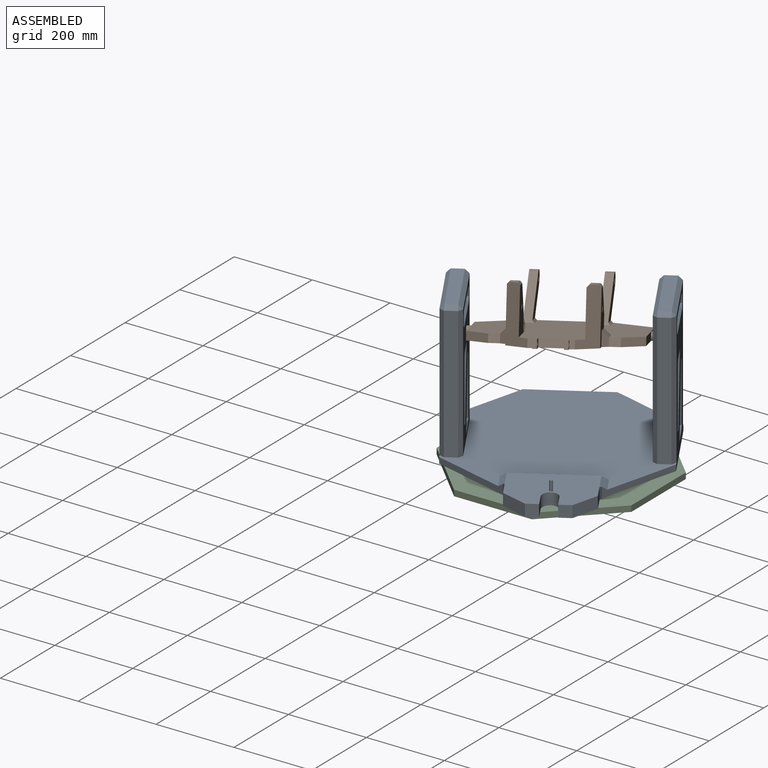
[diagram: assembled view]
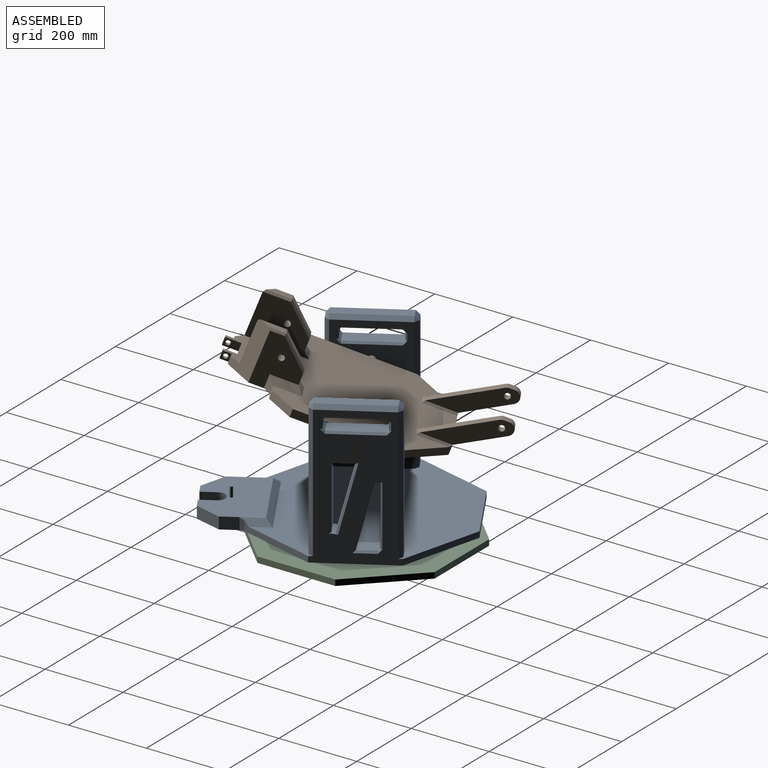
[diagram: assembled view, second angle]
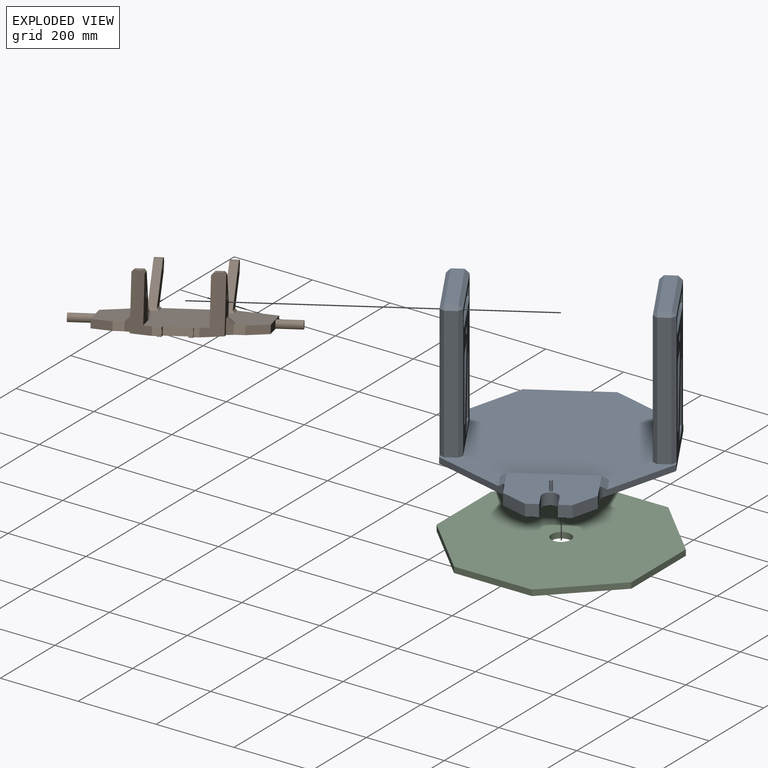
[diagram: exploded view]
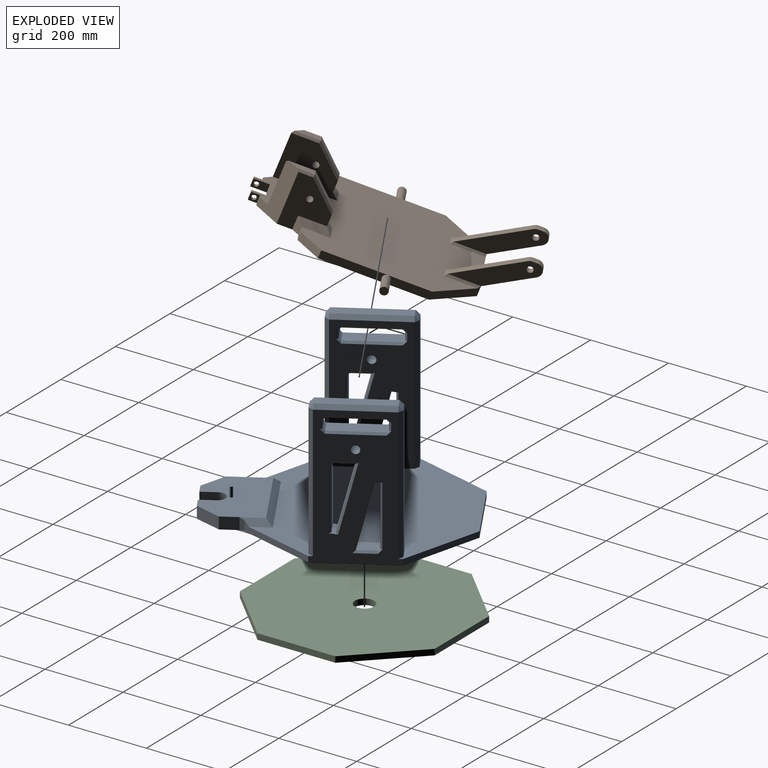
[diagram: exploded view, second angle]
ASSEMBLY  parts=3 mates=2
PART A: 170 faces, bbox 500x600x410 mm
  f0: plane 30x30mm, normal (0,-1,0), area 900mm2, adj f7,f24,f52,f167
  f1: plane 355x200mm, normal (1,0,0), area 44317.3mm2, adj f5,f7,f8,f9,f20,f27,f32,f33
  f2: plane 340x180mm, normal (-1,0,0), area 41317.3mm2, adj f5,f20,f28,f34,f35,f70,f71,f72
  f3: plane 340x180mm, normal (1,0,0), area 41317.3mm2, adj f5,f21,f44,f48,f50,f100,f101,f103
  f4: plane 355x200mm, normal (-1,0,0), area 44317.3mm2, adj f5,f7,f10,f11,f21,f39,f41,f42
  f5: plane 500x485mm, normal (0,0,1), area 170675mm2, adj f1,f2,f3,f4,f6,f8,f9,f10
  f6: plane 200x15mm, normal (0,1,0), area 3000mm2, adj f5,f7,f9,f10
  f7: plane 600x500mm, normal (0,0,-1), area 218335.5mm2, adj f0,f1,f4,f6,f8,f9,f10,f11
  f8: plane 145.61x145.61mm, normal (0.71,-0.71,0), area 3168.3mm2, adj f1,f5,f7,f56,f57
  f9: plane 150x150mm, normal (0.71,0.71,0), area 3182mm2, adj f1,f5,f6,f7
  f10: plane 150x150mm, normal (-0.71,0.71,0), area 3182mm2, adj f4,f5,f6,f7
  f11: plane 145.61x145.61mm, normal (-0.71,-0.71,0), area 3168.3mm2, adj f4,f5,f7,f53,f54
  f12: cylinder r=25mm len=50mm, axis (0,0,1), area 7068.6mm2, adj f7,f13
  f13: plane 50x50mm, normal (0,0,-1), area 1963.5mm2, adj f12
  f14: plane 340x30mm, normal (0,1,0), area 10200mm2, adj f5,f39,f43,f44
  f15: plane 340x30mm, normal (0,-1,0), area 10200mm2, adj f5,f41,f47,f50
  f16: plane 180x30mm, normal (0,0,1), area 5400mm2, adj f42,f43,f47,f48
  f17: plane 340x30mm, normal (0,1,0), area 10200mm2, adj f5,f27,f28,f29
  f18: plane 340x30mm, normal (0,-1,0), area 10200mm2, adj f5,f33,f34,f38
  f19: plane 180x30mm, normal (0,0,1), area 5400mm2, adj f29,f32,f35,f38
  f20: cylinder r=10mm len=50mm, axis (-1,0,0), area 3141.6mm2, adj f1,f2
  f21: cylinder r=10mm len=50mm, axis (-1,0,0), area 3141.6mm2, adj f3,f4
  f22: plane 43.79x30mm, normal (-1,0,0), area 1313.6mm2, adj f7,f24,f52,f53
  f23: plane 43.79x30mm, normal (1,0,0), area 1313.6mm2, adj f7,f24,f51,f57
  f24: plane 200x150mm, normal (0,0,1), area 25218.9mm2, adj f0,f22,f23,f25,f26,f51,f52,f54
  f25: plane 30x30mm, normal (0,-1,0), area 900mm2, adj f7,f24,f51,f166
  f26: cylinder r=20mm len=40mm, axis (0,0,1), area 1891.2mm2, adj f7,f24,f166,f167
  f27: plane 340x10mm, normal (0.71,0.71,0), area 4808.3mm2, adj f1,f5,f17,f30
  f28: plane 340x10mm, normal (-0.71,0.71,0), area 4808.3mm2, adj f2,f5,f17,f31
  f29: plane 30x10mm, normal (0,0.71,0.71), area 424.3mm2, adj f17,f19,f30,f31
  f30: plane 10x10mm, normal (0.58,0.58,0.58), area 86.6mm2, adj f27,f29,f32
  f31: plane 10x10mm, normal (-0.58,0.58,0.58), area 86.6mm2, adj f28,f29,f35
  f32: plane 180x10mm, normal (0.71,0,0.71), area 2545.6mm2, adj f1,f19,f30,f36
  f33: plane 340x10mm, normal (0.71,-0.71,0), area 4808.3mm2, adj f1,f5,f18,f36
  f34: plane 340x10mm, normal (-0.71,-0.71,0), area 4808.3mm2, adj f2,f5,f18,f37
  f35: plane 180x10mm, normal (-0.71,0,0.71), area 2545.6mm2, adj f2,f19,f31,f37
  f36: plane 10x10mm, normal (0.58,-0.58,0.58), area 86.6mm2, adj f32,f33,f38
  f37: plane 10x10mm, normal (-0.58,-0.58,0.58), area 86.6mm2, adj f34,f35,f38
  f38: plane 30x10mm, normal (0,-0.71,0.71), area 424.3mm2, adj f18,f19,f36,f37
  f39: plane 340x10mm, normal (-0.71,0.71,0), area 4808.3mm2, adj f4,f5,f14,f40
  f40: plane 10x10mm, normal (-0.58,0.58,0.58), area 86.6mm2, adj f39,f42,f43
  f41: plane 340x10mm, normal (-0.71,-0.71,0), area 4808.3mm2, adj f4,f5,f15,f45
  f42: plane 180x10mm, normal (-0.71,0,0.71), area 2545.6mm2, adj f4,f16,f40,f45
  f43: plane 30x10mm, normal (0,0.71,0.71), area 424.3mm2, adj f14,f16,f40,f46
  f44: plane 340x10mm, normal (0.71,0.71,0), area 4808.3mm2, adj f3,f5,f14,f46
  f45: plane 10x10mm, normal (-0.58,-0.58,0.58), area 86.6mm2, adj f41,f42,f47
  f46: plane 10x10mm, normal (0.58,0.58,0.58), area 86.6mm2, adj f43,f44,f48
  f47: plane 30x10mm, normal (0,-0.71,0.71), area 424.3mm2, adj f15,f16,f45,f49
  f48: plane 180x10mm, normal (0.71,0,0.71), area 2545.6mm2, adj f3,f16,f46,f49
  f49: plane 10x10mm, normal (0.58,-0.58,0.58), area 86.6mm2, adj f47,f48,f50
  f50: plane 340x10mm, normal (0.71,-0.71,0), area 4808.3mm2, adj f3,f5,f15,f49
  f51: plane 50x50mm, normal (0.71,-0.71,0), area 2121.3mm2, adj f7,f23,f24,f25
  f52: plane 50x50mm, normal (-0.71,-0.71,0), area 2121.3mm2, adj f0,f7,f22,f24
  f53: plane 30x10.61mm, normal (-0.92,-0.38,0), area 319.2mm2, adj f7,f11,f22,f54
  f54: plane 71.21x15mm, normal (-0.71,0,0.71), area 1080mm2, adj f5,f11,f24,f53,f55
  f55: plane 230x15mm, normal (0,0.71,0.71), area 4560.8mm2, adj f5,f24,f54,f56
  f56: plane 71.21x15mm, normal (0.71,0,0.71), area 1080mm2, adj f5,f8,f24,f55,f57
  f57: plane 30x10.61mm, normal (0.92,-0.38,0), area 319.2mm2, adj f7,f8,f23,f56
  f58: plane 155.64x40mm, normal (0,-1,0), area 6225.4mm2, adj f73,f74,f77,f78
  f59: plane 161.89x41.8mm, normal (0,0.97,-0.25), area 6687.8mm2, adj f60,f70,f74,f79
  f60: plane 46.64x40mm, normal (0,0,1), area 1865.6mm2, adj f59,f72,f77,f81
  f61: plane 155.64x40mm, normal (0,1,0), area 6225.4mm2, adj f85,f86,f89,f90
  f62: plane 161.89x41.8mm, normal (0,-0.97,0.25), area 6687.8mm2, adj f63,f82,f86,f91
  f63: plane 46.64x40mm, normal (0,0,-1), area 1865.6mm2, adj f62,f84,f89,f93
  f64: plane 46.64x40mm, normal (0,0,1), area 1865.6mm2, adj f65,f94,f98,f103
  f65: plane 161.89x41.8mm, normal (0,0.97,-0.25), area 6687.8mm2, adj f64,f97,f102,f105
  f66: plane 155.64x40mm, normal (0,-1,0), area 6225.4mm2, adj f96,f98,f101,f102
  f67: plane 46.64x40mm, normal (0,0,-1), area 1865.6mm2, adj f68,f106,f110,f115
  f68: plane 161.89x41.8mm, normal (0,-0.97,0.25), area 6687.8mm2, adj f67,f109,f114,f117
  f69: plane 155.64x40mm, normal (0,1,0), area 6225.4mm2, adj f108,f110,f113,f114
  f70: plane 168.14x48.25mm, normal (-0.71,0.68,-0.18), area 1205.1mm2, adj f2,f59,f71,f72
  f71: plane 19.68x5mm, normal (-0.13,-0.13,-0.98), area 75mm2, adj f2,f70,f73,f74
  f72: plane 53.09x5mm, normal (-0.71,0,0.71), area 352.6mm2, adj f2,f60,f70,f75
  f73: plane 155.64x5mm, normal (-0.71,-0.71,0), area 1100.5mm2, adj f2,f58,f71,f75
  f74: plane 40x9.84mm, normal (0,-0.13,-0.99), area 396.8mm2, adj f58,f59,f71,f76
  f75: plane 10x10mm, normal (-0.58,-0.58,0.58), area 65mm2, adj f2,f72,f73,f77
  f76: plane 19.68x5mm, normal (0.13,-0.13,-0.98), area 75mm2, adj f1,f74,f78,f79
  f77: plane 40x5mm, normal (0,-0.71,0.71), area 282.8mm2, adj f58,f60,f75,f80
  f78: plane 155.64x5mm, normal (0.71,-0.71,0), area 1100.5mm2, adj f1,f58,f76,f80
  f79: plane 168.14x48.25mm, normal (0.71,0.68,-0.18), area 1205.1mm2, adj f1,f59,f76,f81
  f80: plane 10x10mm, normal (0.58,-0.58,0.58), area 65mm2, adj f1,f77,f78,f81
  f81: plane 53.09x5mm, normal (0.71,0,0.71), area 352.6mm2, adj f1,f60,f79,f80
  f82: plane 168.14x48.25mm, normal (-0.71,-0.68,0.18), area 1205.1mm2, adj f2,f62,f83,f84
  f83: plane 19.68x5mm, normal (-0.13,0.13,0.98), area 75mm2, adj f2,f82,f85,f86
  f84: plane 53.09x5mm, normal (-0.71,0,-0.71), area 352.6mm2, adj f2,f63,f82,f87
  f85: plane 155.64x5mm, normal (-0.71,0.71,0), area 1100.5mm2, adj f2,f61,f83,f87
  f86: plane 40x9.84mm, normal (0,0.13,0.99), area 396.8mm2, adj f61,f62,f83,f88
  f87: plane 10x10mm, normal (-0.58,0.58,-0.58), area 65mm2, adj f2,f84,f85,f89
  f88: plane 19.68x5mm, normal (0.13,0.13,0.98), area 75mm2, adj f1,f86,f90,f91
  f89: plane 40x5mm, normal (0,0.71,-0.71), area 282.8mm2, adj f61,f63,f87,f92
  f90: plane 155.64x5mm, normal (0.71,0.71,0), area 1100.5mm2, adj f1,f61,f88,f92
  f91: plane 168.14x48.25mm, normal (0.71,-0.68,0.18), area 1205.1mm2, adj f1,f62,f88,f93
  f92: plane 10x10mm, normal (0.58,0.58,-0.58), area 65mm2, adj f1,f89,f90,f93
  f93: plane 53.09x5mm, normal (0.71,0,-0.71), area 352.6mm2, adj f1,f63,f91,f92
  f94: plane 53.09x5mm, normal (-0.71,0,0.71), area 352.6mm2, adj f4,f64,f95,f97
  f95: plane 10x10mm, normal (-0.58,-0.58,0.58), area 65mm2, adj f4,f94,f96,f98
  f96: plane 155.64x5mm, normal (-0.71,-0.71,0), area 1100.5mm2, adj f4,f66,f95,f99
  f97: plane 168.14x48.25mm, normal (-0.71,0.68,-0.18), area 1205.1mm2, adj f4,f65,f94,f99
  f98: plane 40x5mm, normal (0,-0.71,0.71), area 282.8mm2, adj f64,f66,f95,f100
  f99: plane 19.68x5mm, normal (-0.13,-0.13,-0.98), area 75mm2, adj f4,f96,f97,f102
  f100: plane 10x10mm, normal (0.58,-0.58,0.58), area 65mm2, adj f3,f98,f101,f103
  f101: plane 155.64x5mm, normal (0.71,-0.71,0), area 1100.5mm2, adj f3,f66,f100,f104
  f102: plane 40x9.84mm, normal (0,-0.13,-0.99), area 396.8mm2, adj f65,f66,f99,f104
  f103: plane 53.09x5mm, normal (0.71,0,0.71), area 352.6mm2, adj f3,f64,f100,f105
  f104: plane 19.68x5mm, normal (0.13,-0.13,-0.98), area 75mm2, adj f3,f101,f102,f105
  f105: plane 168.14x48.25mm, normal (0.71,0.68,-0.18), area 1205.1mm2, adj f3,f65,f103,f104
  f106: plane 53.09x5mm, normal (-0.71,0,-0.71), area 352.6mm2, adj f4,f67,f107,f109
  f107: plane 10x10mm, normal (-0.58,0.58,-0.58), area 65mm2, adj f4,f106,f108,f110
  f108: plane 155.64x5mm, normal (-0.71,0.71,0), area 1100.5mm2, adj f4,f69,f107,f111
  f109: plane 168.14x48.25mm, normal (-0.71,-0.68,0.18), area 1205.1mm2, adj f4,f68,f106,f111
  f110: plane 40x5mm, normal (0,0.71,-0.71), area 282.8mm2, adj f67,f69,f107,f112
  f111: plane 19.68x5mm, normal (-0.13,0.13,0.98), area 75mm2, adj f4,f108,f109,f114
  f112: plane 10x10mm, normal (0.58,0.58,-0.58), area 65mm2, adj f3,f110,f113,f115
  f113: plane 155.64x5mm, normal (0.71,0.71,0), area 1100.5mm2, adj f3,f69,f112,f116
  f114: plane 40x9.84mm, normal (0,0.13,0.99), area 396.8mm2, adj f68,f69,f111,f116
  f115: plane 53.09x5mm, normal (0.71,0,-0.71), area 352.6mm2, adj f3,f67,f112,f117
  f116: plane 19.68x5mm, normal (0.13,0.13,0.98), area 75mm2, adj f3,f113,f114,f117
  f117: plane 168.14x48.25mm, normal (0.71,-0.68,0.18), area 1205.1mm2, adj f3,f68,f115,f116
  f118: plane 40x20mm, normal (0,-1,0), area 800mm2, adj f146,f150,f151,f152
  f119: plane 130x40mm, normal (0,0,1), area 5200mm2, adj f152,f153,f161,f162
  f120: plane 40x20mm, normal (0,1,0), area 800mm2, adj f154,f159,f162,f165
  f121: plane 130x40mm, normal (0,0,-1), area 5200mm2, adj f149,f150,f159,f160
  f122: plane 130x40mm, normal (0,0,-1), area 5200mm2, adj f132,f133,f141,f142
  f123: plane 40x20mm, normal (0,1,0), area 800mm2, adj f126,f130,f131,f132
  f124: plane 130x40mm, normal (0,0,1), area 5200mm2, adj f129,f130,f139,f140
  f125: plane 40x20mm, normal (0,-1,0), area 800mm2, adj f134,f139,f142,f145
  f126: plane 20x5mm, normal (0.71,0.71,0), area 141.4mm2, adj f3,f123,f127,f128
  f127: plane 10x10mm, normal (0.58,0.58,0.58), area 65mm2, adj f3,f126,f129,f130
  f128: plane 10x10mm, normal (0.58,0.58,-0.58), area 65mm2, adj f3,f126,f132,f133
  f129: plane 130x5mm, normal (0.71,0,0.71), area 919.2mm2, adj f3,f124,f127,f135
  f130: plane 40x5mm, normal (0,0.71,0.71), area 282.8mm2, adj f123,f124,f127,f136
  f131: plane 20x5mm, normal (-0.71,0.71,0), area 141.4mm2, adj f4,f123,f136,f137
  f132: plane 40x5mm, normal (0,0.71,-0.71), area 282.8mm2, adj f122,f123,f128,f137
  f133: plane 130x5mm, normal (0.71,0,-0.71), area 919.2mm2, adj f3,f122,f128,f138
  f134: plane 20x5mm, normal (0.71,-0.71,0), area 141.4mm2, adj f3,f125,f135,f138
  f135: plane 10x10mm, normal (0.58,-0.58,0.58), area 65mm2, adj f3,f129,f134,f139
  f136: plane 10x10mm, normal (-0.58,0.58,0.58), area 65mm2, adj f4,f130,f131,f140
  f137: plane 10x10mm, normal (-0.58,0.58,-0.58), area 65mm2, adj f4,f131,f132,f141
  f138: plane 10x10mm, normal (0.58,-0.58,-0.58), area 65mm2, adj f3,f133,f134,f142
  f139: plane 40x5mm, normal (0,-0.71,0.71), area 282.8mm2, adj f124,f125,f135,f143
  f140: plane 130x5mm, normal (-0.71,0,0.71), area 919.2mm2, adj f4,f124,f136,f143
  f141: plane 130x5mm, normal (-0.71,0,-0.71), area 919.2mm2, adj f4,f122,f137,f144
  f142: plane 40x5mm, normal (0,-0.71,-0.71), area 282.8mm2, adj f122,f125,f138,f144
  f143: plane 10x10mm, normal (-0.58,-0.58,0.58), area 65mm2, adj f4,f139,f140,f145
  f144: plane 10x10mm, normal (-0.58,-0.58,-0.58), area 65mm2, adj f4,f141,f142,f145
  f145: plane 20x5mm, normal (-0.71,-0.71,0), area 141.4mm2, adj f4,f125,f143,f144
  f146: plane 20x5mm, normal (0.71,-0.71,0), area 141.4mm2, adj f1,f118,f147,f148
  f147: plane 10x10mm, normal (0.58,-0.58,-0.58), area 65mm2, adj f1,f146,f149,f150
  f148: plane 10x10mm, normal (0.58,-0.58,0.58), area 65mm2, adj f1,f146,f152,f153
  f149: plane 130x5mm, normal (0.71,0,-0.71), area 919.2mm2, adj f1,f121,f147,f155
  f150: plane 40x5mm, normal (0,-0.71,-0.71), area 282.8mm2, adj f118,f121,f147,f156
  f151: plane 20x5mm, normal (-0.71,-0.71,0), area 141.4mm2, adj f2,f118,f156,f157
  f152: plane 40x5mm, normal (0,-0.71,0.71), area 282.8mm2, adj f118,f119,f148,f157
  f153: plane 130x5mm, normal (0.71,0,0.71), area 919.2mm2, adj f1,f119,f148,f158
  f154: plane 20x5mm, normal (0.71,0.71,0), area 141.4mm2, adj f1,f120,f155,f158
  f155: plane 10x10mm, normal (0.58,0.58,-0.58), area 65mm2, adj f1,f149,f154,f159
  f156: plane 10x10mm, normal (-0.58,-0.58,-0.58), area 65mm2, adj f2,f150,f151,f160
  f157: plane 10x10mm, normal (-0.58,-0.58,0.58), area 65mm2, adj f2,f151,f152,f161
  f158: plane 10x10mm, normal (0.58,0.58,0.58), area 65mm2, adj f1,f153,f154,f162
  f159: plane 40x5mm, normal (0,0.71,-0.71), area 282.8mm2, adj f120,f121,f155,f163
  f160: plane 130x5mm, normal (-0.71,0,-0.71), area 919.2mm2, adj f2,f121,f156,f163
  f161: plane 130x5mm, normal (-0.71,0,0.71), area 919.2mm2, adj f2,f119,f157,f164
  f162: plane 40x5mm, normal (0,0.71,0.71), area 282.8mm2, adj f119,f120,f158,f164
  f163: plane 10x10mm, normal (-0.58,0.58,-0.58), area 65mm2, adj f2,f159,f160,f165
  f164: plane 10x10mm, normal (-0.58,0.58,0.58), area 65mm2, adj f2,f161,f162,f165
  f165: plane 20x5mm, normal (-0.71,0.71,0), area 141.4mm2, adj f2,f120,f163,f164
  f166: plane 39.94x30mm, normal (-1,0,0), area 1198.3mm2, adj f7,f24,f25,f26
  f167: plane 39.85x30mm, normal (1,0,0), area 1195.5mm2, adj f0,f7,f24,f26
  f168: cylinder r=4.1mm len=25mm, axis (0,0,-1), area 644.1mm2, adj f24,f169
  f169: plane 8.2x8.2mm, normal (0,0,1), area 52.8mm2, adj f168
PART B: 82 faces, bbox 500x629.2x135 mm
  f0: plane 20x11.5mm, normal (0,-1,0), area 230.1mm2, adj f2,f3,f5,f68
  f1: plane 20x11.5mm, normal (0,-1,0), area 230.1mm2, adj f2,f3,f26,f66
  f2: plane 520x380mm, normal (0,0,1), area 141911.6mm2, adj f0,f1,f5,f6,f9,f10,f11,f12
  f3: plane 520x380mm, normal (0,0,-1), area 156661.6mm2, adj f0,f1,f5,f9,f10,f11,f12,f13
  f4: plane 20x12.82mm, normal (0,0,1), area 256.4mm2, adj f32,f33,f45,f49
  f5: plane 135x50mm, normal (0.71,-0.71,0), area 6257.9mm2, adj f0,f2,f3,f21,f39,f60,f78,f79
  f6: plane 45x15mm, normal (0,0.71,0.71), area 795.5mm2, adj f2,f30,f39,f59
  f7: plane 101.51x64.29mm, normal (0,0.54,-0.84), area 2403.2mm2, adj f13,f32,f33,f46
  f8: plane 145.96x92.44mm, normal (0,-0.54,0.84), area 3455.3mm2, adj f32,f33,f49,f56
  f9: plane 25x20mm, normal (0,-1,0), area 500mm2, adj f2,f3,f24,f27
  f10: plane 150x20mm, normal (1,0,0), area 2842.9mm2, adj f2,f3,f18,f25
  f11: plane 150x20mm, normal (-1,0,0), area 2842.9mm2, adj f2,f3,f17,f24
  f12: plane 25x20mm, normal (0,-1,0), area 500mm2, adj f2,f3,f25,f31
  f13: plane 180x25mm, normal (0,1,0), area 3825mm2, adj f2,f3,f7,f22,f23,f36,f51,f55
  f14: plane 100x20mm, normal (1,0,0), area 1842.9mm2, adj f2,f3,f18,f23
  f15: plane 100x20mm, normal (-1,0,0), area 1842.9mm2, adj f2,f3,f17,f22
  f16: plane 20x20mm, normal (-1,0,0), area 314.2mm2, adj f17
  f17: cylinder r=10mm len=60mm, axis (-1,0,0), area 3769.9mm2, adj f11,f15,f16
  f18: cylinder r=10mm len=60mm, axis (-1,0,0), area 3769.9mm2, adj f10,f14,f19
  f19: plane 20x20mm, normal (1,0,0), area 314.2mm2, adj f18
  f20: plane 130x100mm, normal (-1,0,0), area 8299mm2, adj f3,f26,f27,f28,f57,f61,f75,f81
  f21: plane 130x100mm, normal (1,0,0), area 8299mm2, adj f3,f5,f30,f31,f59,f62,f76,f78
  f22: plane 100x100mm, normal (-0.71,0.71,0), area 2846.1mm2, adj f2,f3,f13,f15,f53
  f23: plane 100x100mm, normal (0.71,0.71,0), area 2846.1mm2, adj f2,f3,f13,f14,f54
  f24: plane 50x50mm, normal (-0.71,-0.71,0), area 1414.2mm2, adj f2,f3,f9,f11
  f25: plane 50x50mm, normal (0.71,-0.71,0), area 1414.2mm2, adj f2,f3,f10,f12
  f26: plane 135x50mm, normal (-0.71,-0.71,0), area 6257.9mm2, adj f1,f2,f3,f20,f40,f58,f80,f81
  f27: plane 35x15mm, normal (-0.71,-0.71,0), area 583.4mm2, adj f3,f9,f20,f28
  f28: plane 80x15mm, normal (-0.71,0,0.71), area 1378.9mm2, adj f2,f20,f27,f29
  f29: plane 45x15mm, normal (0,0.71,0.71), area 795.5mm2, adj f2,f28,f40,f57
  f30: plane 80x15mm, normal (0.71,0,0.71), area 1378.9mm2, adj f2,f6,f21,f31
  f31: plane 35x15mm, normal (0.71,-0.71,0), area 583.4mm2, adj f3,f12,f21,f30
  f32: plane 184.18x95mm, normal (1,0,0), area 6346.2mm2, adj f4,f7,f8,f42,f44,f45,f46,f49
  f33: plane 184.18x95mm, normal (-1,0,0), area 6346.2mm2, adj f4,f7,f8,f42,f44,f45,f46,f49
  f34: plane 184.18x95mm, normal (-1,0,0), area 6346.2mm2, adj f36,f37,f38,f41,f43,f47,f48,f50
  f35: plane 184.18x95mm, normal (1,0,0), area 6346.2mm2, adj f36,f37,f38,f41,f43,f47,f48,f50
  f36: plane 101.51x64.29mm, normal (0,0.54,-0.84), area 2403.2mm2, adj f13,f34,f35,f48
  f37: plane 145.96x92.44mm, normal (0,-0.54,0.84), area 3455.3mm2, adj f34,f35,f50,f52
  f38: plane 20x12.82mm, normal (0,0,1), area 256.4mm2, adj f34,f35,f47,f50
  f39: plane 145x110mm, normal (-1,0,0), area 11986.5mm2, adj f2,f5,f6,f59,f62,f77,f79
  f40: plane 145x110mm, normal (1,0,0), area 11986.5mm2, adj f2,f26,f29,f57,f61,f74,f80
  f41: cylinder r=7.5mm len=20mm, axis (1,0,0), area 942.5mm2, adj f34,f35
  f42: cylinder r=7.5mm len=20mm, axis (1,0,0), area 942.5mm2, adj f32,f33
  f43: plane 20x0.27mm, normal (0,0.96,0.28), area 5.6mm2, adj f34,f35,f47,f48
  f44: plane 20x0.27mm, normal (0,0.96,0.28), area 5.6mm2, adj f32,f33,f45,f46
  f45: cylinder r=16.5mm len=20mm, axis (1,0,0), area 425.2mm2, adj f4,f32,f33,f44
  f46: cylinder r=16.5mm len=20mm, axis (1,0,0), area 425.2mm2, adj f7,f32,f33,f44
  f47: cylinder r=16.5mm len=20mm, axis (1,0,0), area 425.2mm2, adj f34,f35,f38,f43
  f48: cylinder r=16.5mm len=20mm, axis (1,0,0), area 425.2mm2, adj f34,f35,f36,f43
  f49: cylinder r=16.5mm len=20mm, axis (1,0,0), area 186.3mm2, adj f4,f8,f32,f33
  f50: cylinder r=16.5mm len=20mm, axis (1,0,0), area 186.3mm2, adj f34,f35,f37,f38
  f51: plane 80x5mm, normal (0.71,0,0.71), area 548mm2, adj f2,f13,f35,f52
  f52: plane 30x5mm, normal (0,-0.71,0.71), area 176.8mm2, adj f2,f37,f51,f53
  f53: plane 80x5mm, normal (-0.71,0,0.71), area 530.3mm2, adj f2,f22,f34,f52
  f54: plane 80x5mm, normal (0.71,0,0.71), area 530.3mm2, adj f2,f23,f32,f56
  f55: plane 80x5mm, normal (-0.71,0,0.71), area 548mm2, adj f2,f13,f33,f56
  f56: plane 30x5mm, normal (0,-0.71,0.71), area 176.8mm2, adj f2,f8,f54,f55
  f57: plane 35x30mm, normal (0,1,0), area 1014.6mm2, adj f20,f29,f40,f73,f74,f75
  f58: plane 60x20mm, normal (0,0,1), area 1000mm2, adj f26,f73,f80,f81
  f59: plane 35x30mm, normal (0,1,0), area 1014.6mm2, adj f6,f21,f39,f72,f76,f77
  f60: plane 60x20mm, normal (0,0,1), area 1000mm2, adj f5,f72,f78,f79
  f61: cylinder r=7.5mm len=30mm, axis (1,0,0), area 1413.7mm2, adj f20,f40
  f62: cylinder r=7.5mm len=30mm, axis (1,0,0), area 1413.7mm2, adj f21,f39
  f63: plane 36.9x20mm, normal (-1,0,0), area 625mm2, adj f2,f3,f64,f69,f70
  f64: plane 56.99x20mm, normal (0,-1,0), area 1139.8mm2, adj f2,f3,f63,f65
  f65: plane 36.9x20mm, normal (1,0,0), area 625mm2, adj f2,f3,f64,f67,f71
  f66: plane 20x20mm, normal (-1,0,0), area 286.9mm2, adj f1,f2,f3,f67,f71
  f67: plane 20x10mm, normal (0,-1,0), area 200mm2, adj f2,f3,f65,f66
  f68: plane 20x20mm, normal (1,0,0), area 286.9mm2, adj f0,f2,f3,f69,f70
  f69: plane 20x10mm, normal (0,-1,0), area 200mm2, adj f2,f3,f63,f68
  f70: cylinder r=6mm len=12mm, axis (-1,0,0), area 377mm2, adj f63,f68
  f71: cylinder r=6mm len=12mm, axis (-1,0,0), area 377mm2, adj f65,f66
  f72: plane 65x65mm, normal (0,0.71,0.71), area 1838.5mm2, adj f59,f60,f76,f77
  f73: plane 65x65mm, normal (0,0.71,0.71), area 1838.5mm2, adj f57,f58,f74,f75
  f74: plane 72.07x67.07mm, normal (0.71,0.5,0.5), area 660.4mm2, adj f40,f57,f73,f80
  f75: plane 72.07x67.07mm, normal (-0.71,0.5,0.5), area 660.4mm2, adj f20,f57,f73,f81
  f76: plane 72.07x67.07mm, normal (0.71,0.5,0.5), area 660.4mm2, adj f21,f59,f72,f78
  f77: plane 72.07x67.07mm, normal (-0.71,0.5,0.5), area 660.4mm2, adj f39,f59,f72,f79
  f78: plane 40x5mm, normal (0.71,0,0.71), area 257.8mm2, adj f5,f21,f60,f76
  f79: plane 65x5mm, normal (-0.71,0,0.71), area 434.6mm2, adj f5,f39,f60,f77
  f80: plane 65x5mm, normal (0.71,0,0.71), area 434.6mm2, adj f26,f40,f58,f74
  f81: plane 40x5mm, normal (-0.71,0,0.71), area 257.8mm2, adj f20,f26,f58,f75
PART C: 11 faces, bbox 500x500x15 mm
  f0: plane 200x15mm, normal (0,-1,0), area 3000mm2, adj f4,f5,f6,f8
  f1: plane 200x15mm, normal (1,0,0), area 3000mm2, adj f4,f5,f7,f8
  f2: plane 200x15mm, normal (0,1,0), area 3000mm2, adj f4,f5,f7,f9
  f3: plane 200x15mm, normal (-1,0,0), area 3000mm2, adj f4,f5,f6,f9
  f4: plane 500x500mm, normal (0,0,1), area 203036.5mm2, adj f0,f1,f2,f3,f6,f7,f8,f9
  f5: plane 500x500mm, normal (0,0,-1), area 203036.5mm2, adj f0,f1,f2,f3,f6,f7,f8,f9
  f6: plane 150x150mm, normal (-0.71,-0.71,0), area 3182mm2, adj f0,f3,f4,f5
  f7: plane 150x150mm, normal (0.71,0.71,0), area 3182mm2, adj f1,f2,f4,f5
  f8: plane 150x150mm, normal (0.71,-0.71,0), area 3182mm2, adj f0,f1,f4,f5
  f9: plane 150x150mm, normal (-0.71,0.71,0), area 3182mm2, adj f2,f3,f4,f5
  f10: cylinder r=25mm len=50mm, axis (0,0,1), area 2356.2mm2, adj f4,f5
PLACE A rot(axis=(0,0,1),30.7deg) t=(0,0,20)mm
PLACE B rot(axis=(-0.55,-0.15,0.82),36.8deg) t=(51.95,-87.57,38.46)mm
PLACE C at identity fixed
MATE revolute B.f17 <-> A.f20  axis (-0.86,-0.51,0) through (-215.01,-127.55,310)mm
MATE revolute A.f12 <-> C.f10  axis (0,0,-1) through (0,0,0)mm
